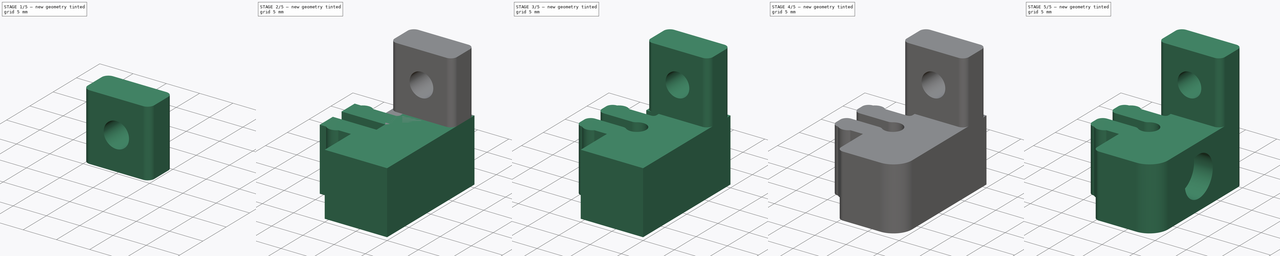
[diagram: build sequence overview — one tinted view per stage of 5, left to right]
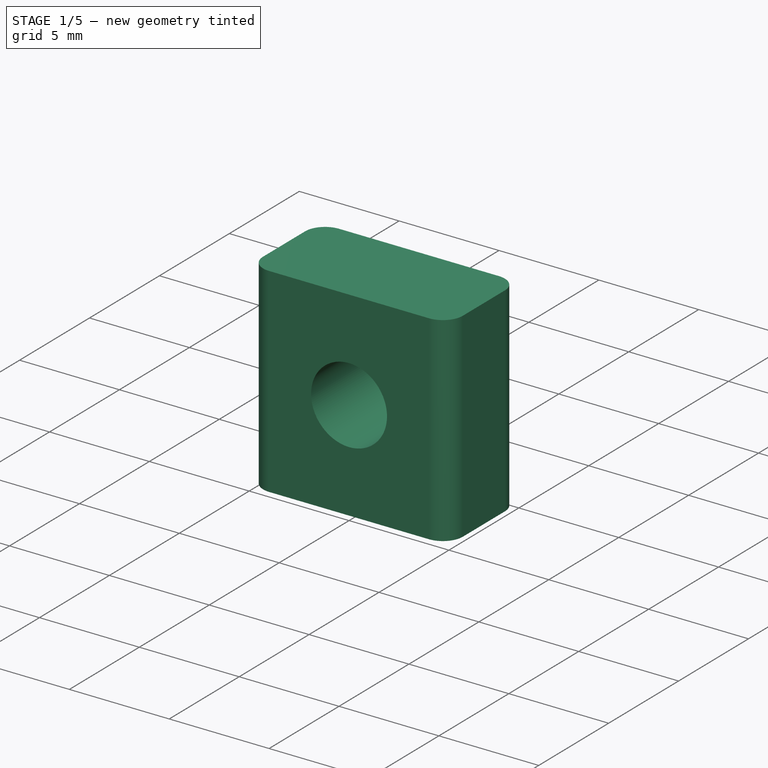
[diagram: stage 1 of 5 — iso view after this stage's code; geometry added in this stage tinted green]
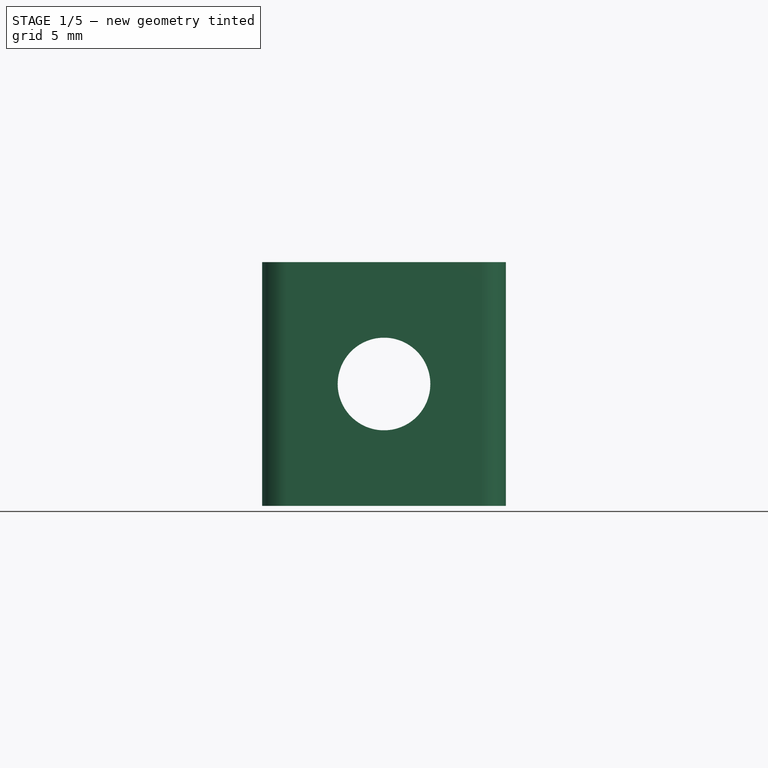
[diagram: stage 1 of 5 — front view after this stage's code; geometry added in this stage tinted green]
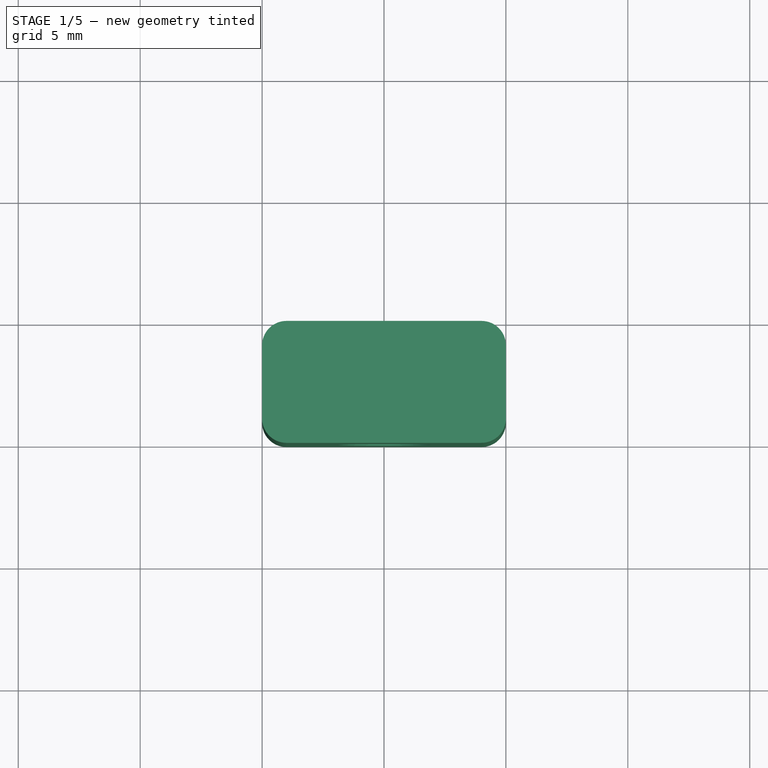
[diagram: stage 1 of 5 — top view after this stage's code; geometry added in this stage tinted green]
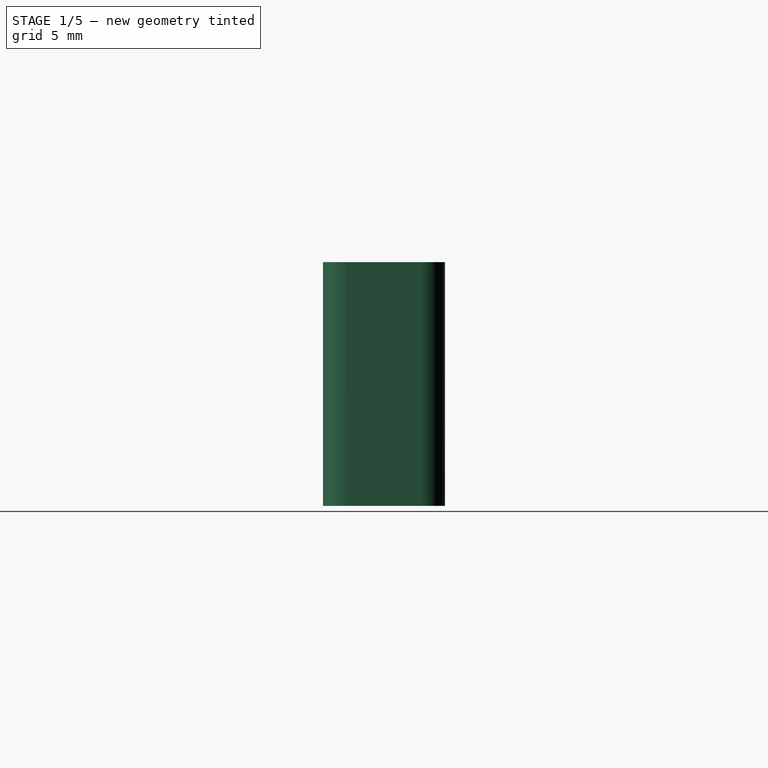
[diagram: stage 1 of 5 — right view after this stage's code; geometry added in this stage tinted green]
FCSTD DOCUMENT  (FreeCAD 0.19R24291 (Git))
Label: bottom-panel-supporter-250
License: Other
LicenseURL: GPL3
objects: Sketcher::SketchObject×6, PartDesign::Fillet×6, PartDesign::Pocket×4, Part::Feature×4, PartDesign::Pad×2, Part::Cylinder×2, PartDesign::Body×1, Part::Box×1, Part::Fillet×1, Part::Cut×1, Part::MultiFuse×1, Part::Refine×1
note: 42 computed .brp shape members not serialized (recipe doc carries the construction recipe); baked Part::Feature solids carry a one-line shape summary decoded from their .brp

FEATURE [PartDesign::Body] Body
  Group = -> [Sketch,Pad,Sketch001,Pocket,Sketch002,Pad001,Fillet,Fillet001,Fillet002,Fillet003,Sketch003,Pocket001,Fillet004,Fillet005,Sketch004,Pocket002,Sketch005,Pocket003]
  Origin = -> Origin
  Tip = -> Pocket003
FEATURE [Part::Feature] Pocket003001
  shape: bbox 15 x 20 x 10 mm, 54 faces (baked)
FEATURE [Part::Box] Box  label="Cube"
  AttacherType = Attacher::AttachEngine3D
  Height = 10
  Length = 10
  Placement = pos=(0,5,10) rot=(0,0,1;0rad)
  Width = 5
FEATURE [Part::Fillet] Fillet006
  Base = -> Box
  Edges = 4 edges r=1: [Edge1,Edge3,Edge5,Edge7]
FEATURE [Part::Cylinder] Cylinder001
  Angle = 360
  AttacherType = Attacher::AttachEngine3D
  Height = 6
  Placement = pos=(5,4,15) rot=(-1,0,0;1.5708rad)
  Radius = 1.9
FEATURE [Part::Cut] Cut
  Base = -> Fillet006
  Tool = -> Cylinder001
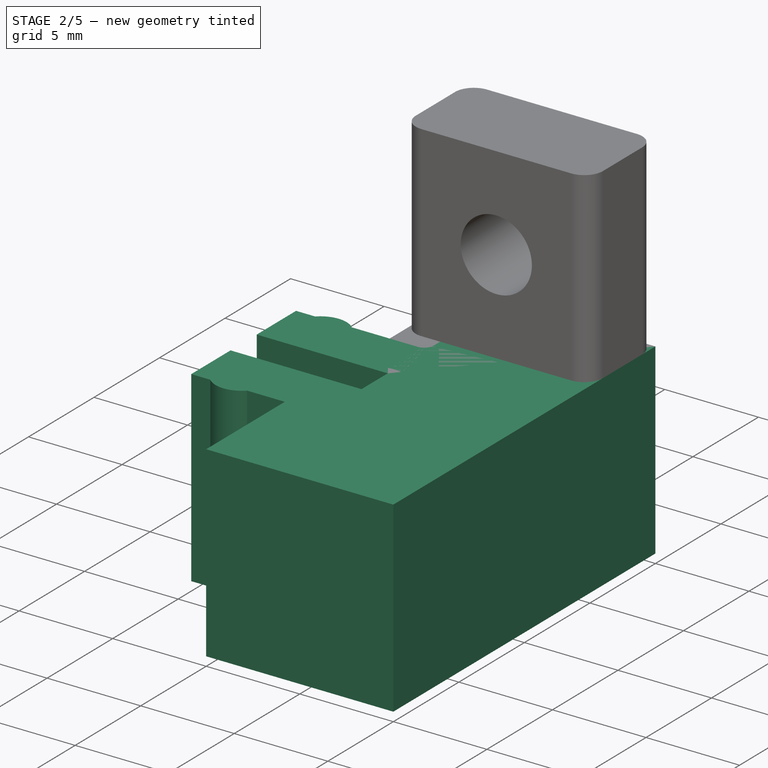
[diagram: stage 2 of 5 — iso view after this stage's code; geometry added in this stage tinted green]
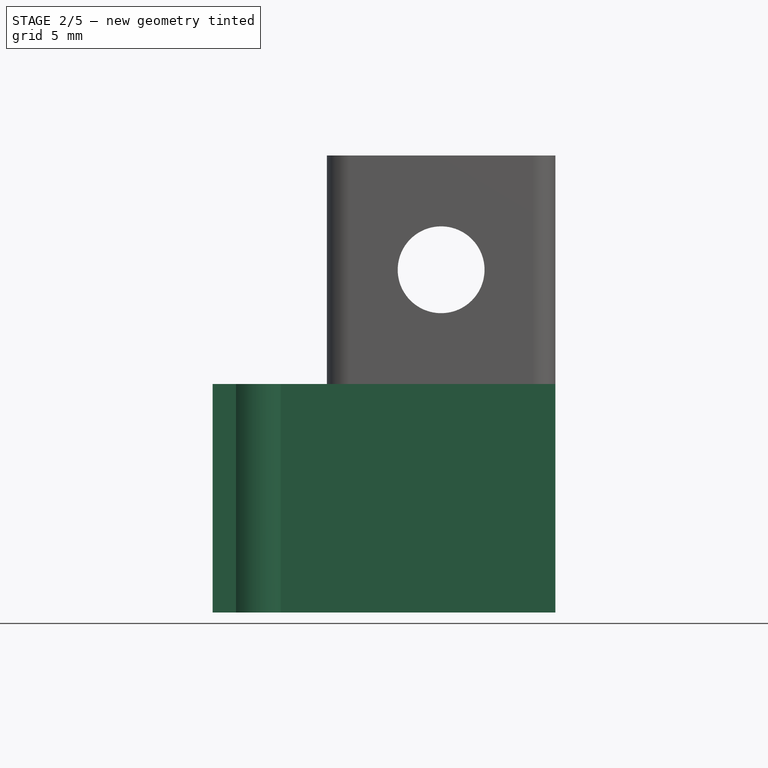
[diagram: stage 2 of 5 — front view after this stage's code; geometry added in this stage tinted green]
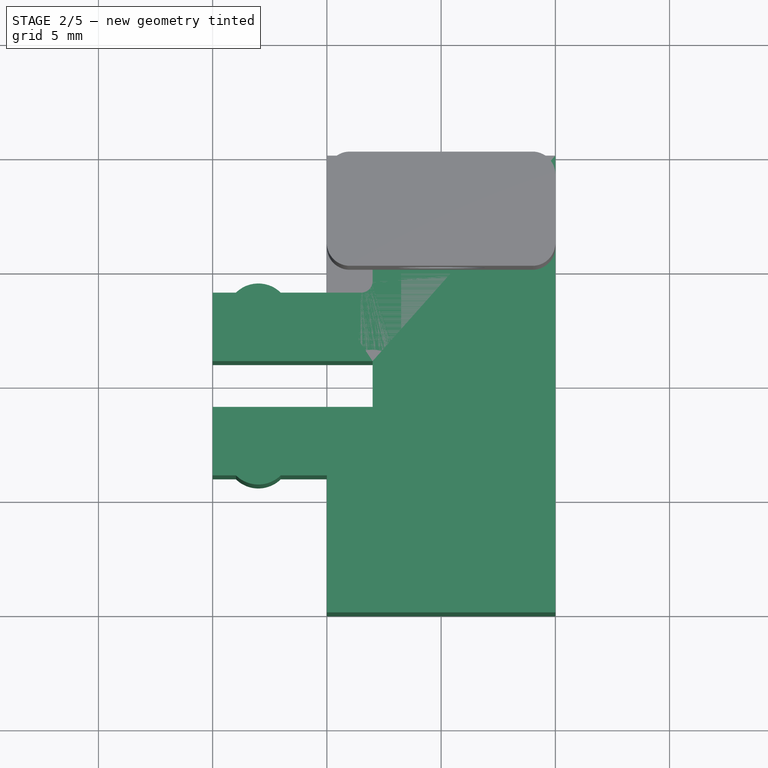
[diagram: stage 2 of 5 — top view after this stage's code; geometry added in this stage tinted green]
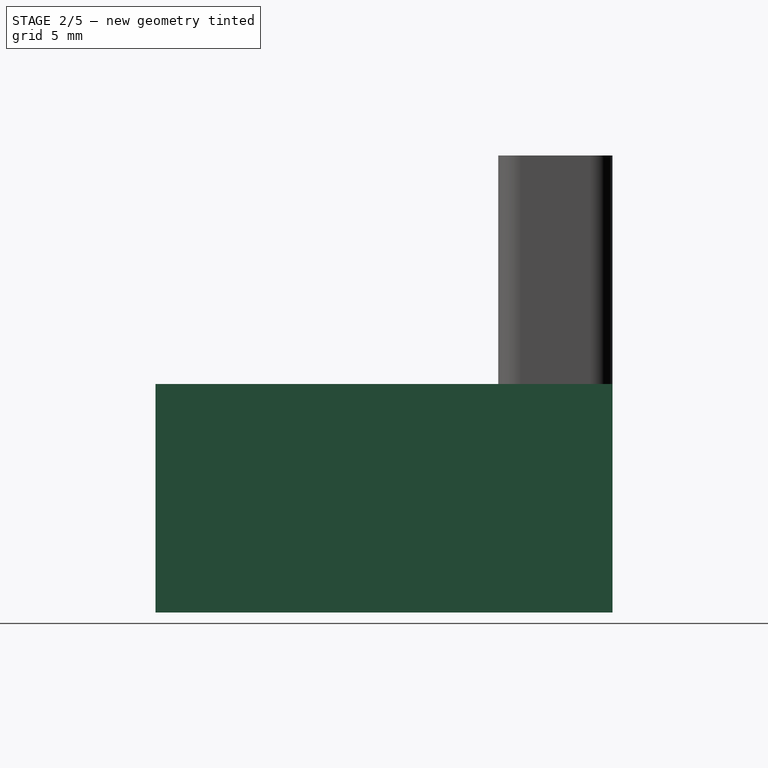
[diagram: stage 2 of 5 — right view after this stage's code; geometry added in this stage tinted green]
FEATURE [Sketcher::SketchObject] Sketch
  FullyConstrained = true
  MapMode = 5
  Support = -> [XY_Plane]
  sketch-geometry (12):
    g0: LineSegment StartX=0 StartY=4 StartZ=0 EndX=-5 EndY=4 EndZ=0
    g1: LineSegment StartX=-5 StartY=-4 StartZ=0 EndX=0 EndY=-4 EndZ=0
    g2: LineSegment StartX=0 StartY=4 StartZ=0 EndX=0 EndY=10 EndZ=0
    g3: LineSegment StartX=0 StartY=10 StartZ=0 EndX=10 EndY=10 EndZ=0
    g4: LineSegment StartX=0 StartY=-4 StartZ=0 EndX=0 EndY=-10 EndZ=0
    g5: LineSegment StartX=0 StartY=-10 StartZ=0 EndX=10 EndY=-10 EndZ=0
    g6: LineSegment StartX=10 StartY=10 StartZ=0 EndX=10 EndY=-10 EndZ=0
    g7: LineSegment StartX=-5 StartY=4 StartZ=0 EndX=-5 EndY=1 EndZ=0
    g8: LineSegment StartX=-5 StartY=-4 StartZ=0 EndX=-5 EndY=-1 EndZ=0
    g9: LineSegment StartX=-5 StartY=1 StartZ=0 EndX=2 EndY=1 EndZ=0
    g10: LineSegment StartX=-5 StartY=-1 StartZ=0 EndX=2 EndY=-1 EndZ=0
    g11: LineSegment StartX=2 StartY=1 StartZ=0 EndX=2 EndY=-1 EndZ=0
  constraints (36):
    c: PointOnObject(g0,g-2)
    c: Horizontal(g0)
    c: PointOnObject(g1,g-2)
    c: Horizontal(g1)
    c: Coincident(g2,g0)
    c: Vertical(g2)
    c: Coincident(g3,g2)
    c: Horizontal(g3)
    c: Coincident(g4,g1)
    c: PointOnObject(g4,g-2)
    c: Coincident(g5,g4)
    c: Horizontal(g5)
    c: Coincident(g6,g3)
    c: Coincident(g6,g5)
    c: Vertical(g6)
    c: Coincident(g7,g0)
    c: Vertical(g7)
    c: Coincident(g8,g1)
    c: Vertical(g8)
    c: Coincident(g9,g7)
    c: Horizontal(g9)
    c: Coincident(g10,g8)
    c: Horizontal(g10)
    c: Coincident(g11,g9)
    c: Vertical(g11)
    c: DistanceX(g3,g3) = 10
    c: DistanceX(g0,g0) = 5
    c: DistanceY(g7,g7) = 3
    c: DistanceY(g8,g8) = 3
    c: DistanceY(g4,g4) = 6
    c: DistanceY(g11,g11) = 2
    c: DistanceY(g6,g6) = 20
    c: DistanceY(g-1,g2) = 10
    c: Coincident(g11,g10)
    c: DistanceX(g1,g1) = 5
    c: DistanceX(g-1,g9) = 2
FEATURE [PartDesign::Pad] Pad
  Direction = (1,1,1)
  Length = 10
  Length2 = 100
  Profile = -> Sketch
  Type = 0
FEATURE [Part::Cylinder] Cylinder
  Angle = 360
  AttacherType = Attacher::AttachEngine3D
  Height = 6
  Placement = pos=(5,4,5) rot=(1,0,0;4.71239rad)
  Radius = 2
FEATURE [Part::MultiFuse] Fusion
  Shapes = -> [Pocket003001,Cylinder,Cut]
FEATURE [Part::Refine] Fusion001
  Source = -> Fusion
FEATURE [Part::Feature] Fusion001001
  shape: bbox 15 x 20 x 20 mm, 44 faces (baked)
FEATURE [Part::Feature] Fusion001002
  Placement = pos=(-14,0,-1.7e-15) rot=(0,1,0;3.14159rad)
  shape: bbox 15 x 20 x 20 mm, 44 faces (baked)
FEATURE [Part::Feature] Part__Mirroring001  label="Fusion001002 (Mirror #1)001"
  shape: bbox 15 x 20 x 20 mm, 44 faces (baked)
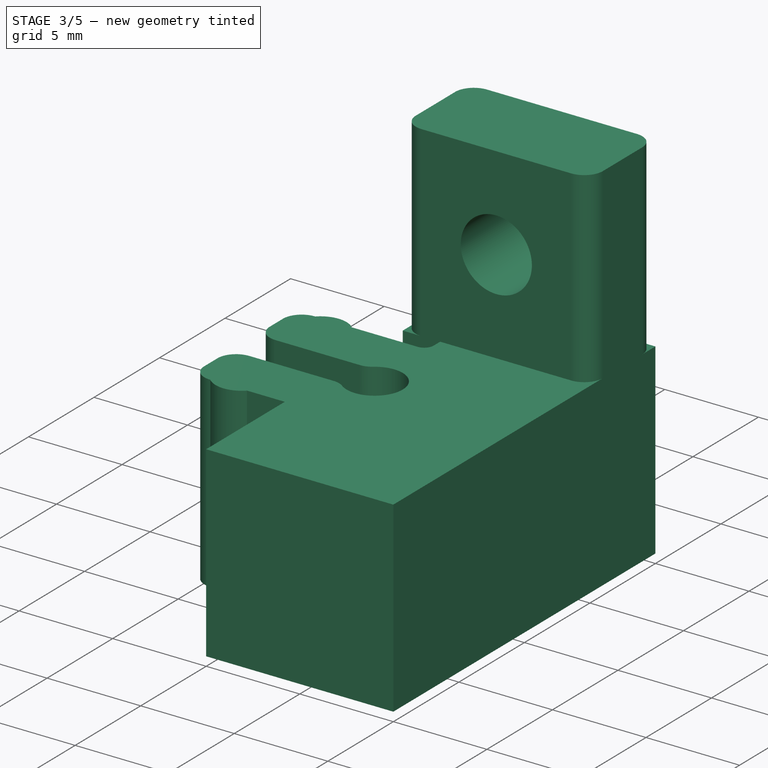
[diagram: stage 3 of 5 — iso view after this stage's code; geometry added in this stage tinted green]
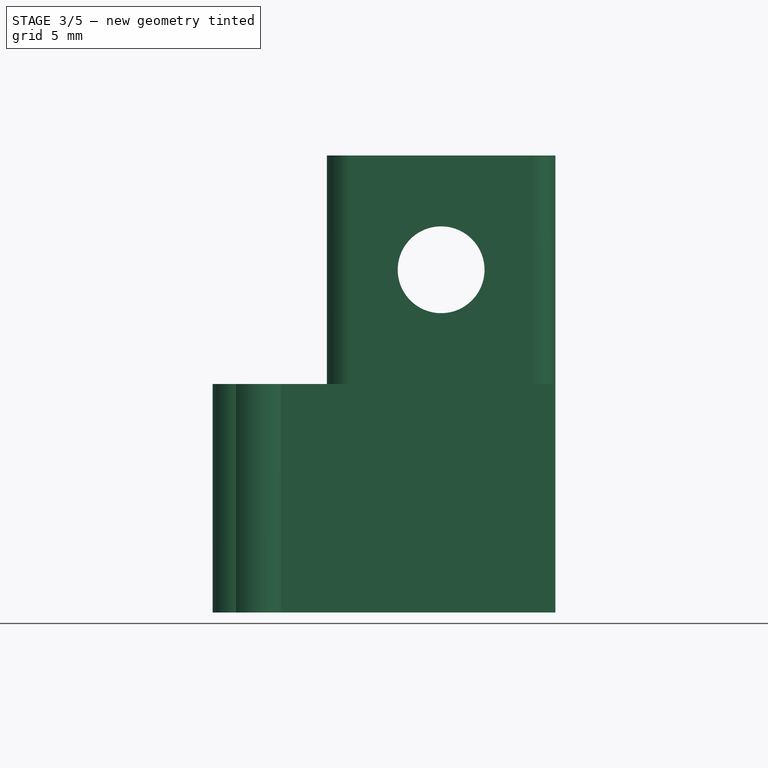
[diagram: stage 3 of 5 — front view after this stage's code; geometry added in this stage tinted green]
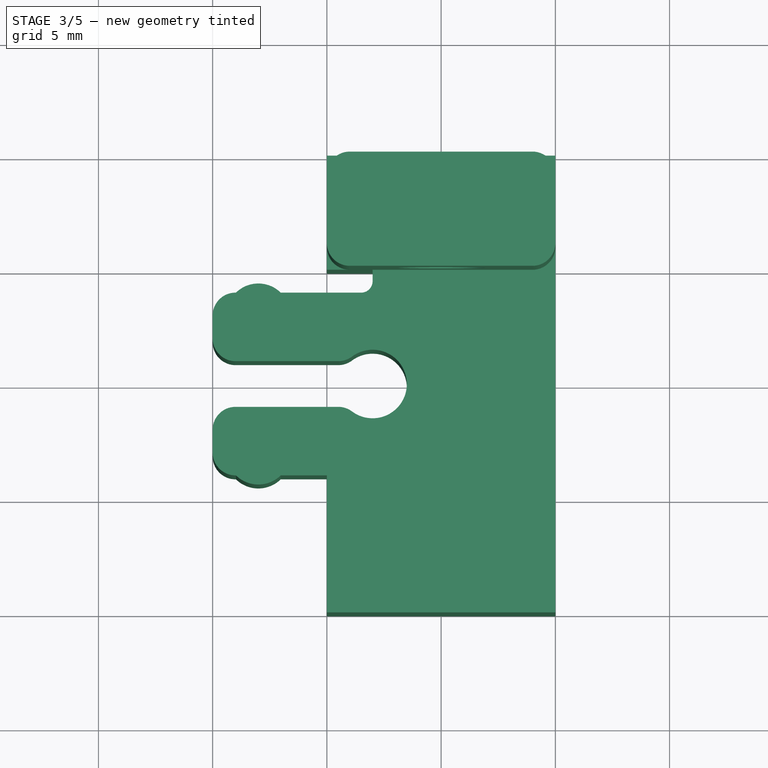
[diagram: stage 3 of 5 — top view after this stage's code; geometry added in this stage tinted green]
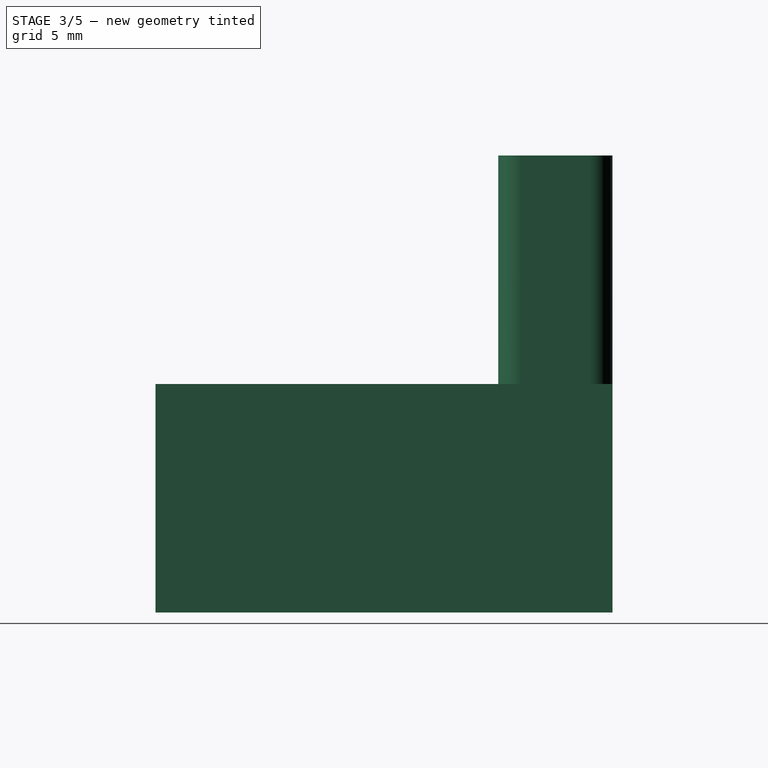
[diagram: stage 3 of 5 — right view after this stage's code; geometry added in this stage tinted green]
FEATURE [Sketcher::SketchObject] Sketch001
  FullyConstrained = true
  MapMode = 5
  Placement = pos=(0,0,10) rot=(0,0,1;0rad)
  Support = -> [Pad]
  sketch-geometry (5):
    g0: Circle CenterX=2 CenterY=0 CenterZ=0 NormalX=0 NormalY=0 NormalZ=1 AngleXU=0 Radius=1.5
    g1: LineSegment StartX=0 StartY=5 StartZ=0 EndX=2 EndY=5 EndZ=0
    g2: LineSegment StartX=2 StartY=5 StartZ=0 EndX=2 EndY=4 EndZ=0
    g3: LineSegment StartX=2 StartY=4 StartZ=0 EndX=0 EndY=4 EndZ=0
    g4: LineSegment StartX=0 StartY=4 StartZ=0 EndX=0 EndY=5 EndZ=0
  constraints (15):
    c: PointOnObject(g0,g-1)
    c: DistanceX(g-1,g0) = 2
    c: Radius(g0) = 1.5
    c: Coincident(g1,g2)
    c: Coincident(g2,g3)
    c: Coincident(g3,g4)
    c: Coincident(g4,g1)
    c: Horizontal(g1)
    c: Horizontal(g3)
    c: Vertical(g2)
    c: Vertical(g4)
    c: PointOnObject(g1,g-2)
    c: DistanceX(g1,g1) = 2
    c: DistanceY(g2,g2) = 1
    c: DistanceY(g-1,g3) = 4
FEATURE [PartDesign::Pocket] Pocket
  BaseFeature = -> Pad
  Length = 5
  Length2 = 100
  Profile = -> Sketch001
  Type = 1
FEATURE [Sketcher::SketchObject] Sketch002
  FullyConstrained = true
  MapMode = 5
  Placement = pos=(0,0,10) rot=(0,0,1;0rad)
  Support = -> [Pocket]
  sketch-geometry (2):
    g0: Circle CenterX=-3 CenterY=3 CenterZ=0 NormalX=0 NormalY=0 NormalZ=1 AngleXU=0 Radius=1.4
    g1: Circle CenterX=-3 CenterY=-3 CenterZ=0 NormalX=0 NormalY=0 NormalZ=1 AngleXU=0 Radius=1.4
  constraints (6):
    c: DistanceY(g-1,g0) = 3
    c: DistanceX(g0,g-1) = 3
    c: Radius(g0) = 1.4
    c: DistanceX(g1,g-1) = 3
    c: DistanceY(g1,g-1) = 3
    c: Radius(g1) = 1.4
FEATURE [PartDesign::Pad] Pad001
  BaseFeature = -> Pocket
  Direction = (1,1,1)
  Length = 10
  Length2 = 100
  Profile = -> Sketch002
  Reversed = true
  Type = 0
FEATURE [PartDesign::Fillet] Fillet
  Base = -> Pad001 [Edge62,Edge61,Edge57,Edge56]
  BaseFeature = -> Pad001
  Radius = 1
  SupportTransform = false
FEATURE [PartDesign::Fillet] Fillet001
  Base = -> Fillet [Edge49,Edge40]
  BaseFeature = -> Fillet
  Radius = 1
  SupportTransform = false
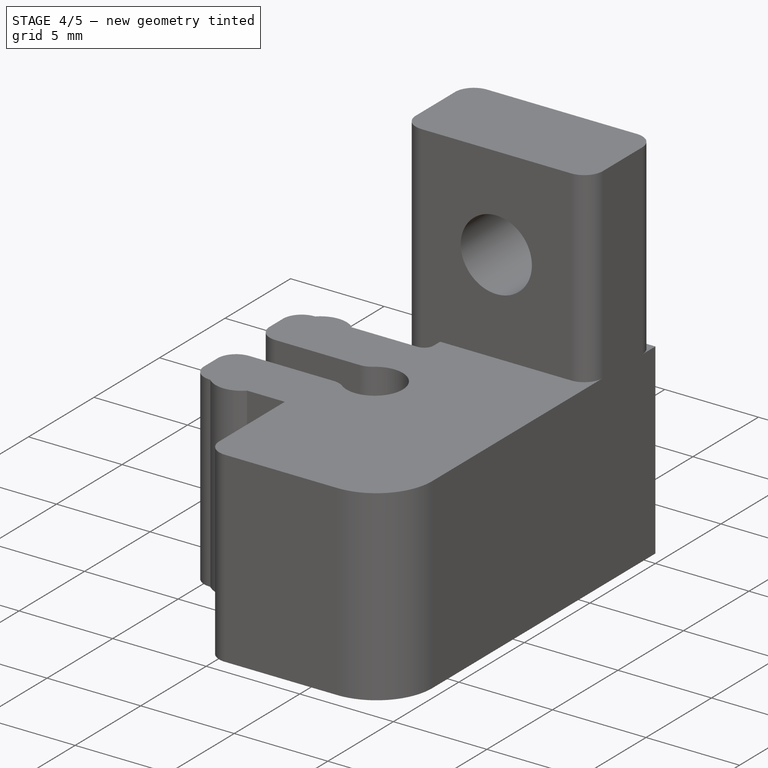
[diagram: stage 4 of 5 — iso view after this stage's code; geometry added in this stage tinted green]
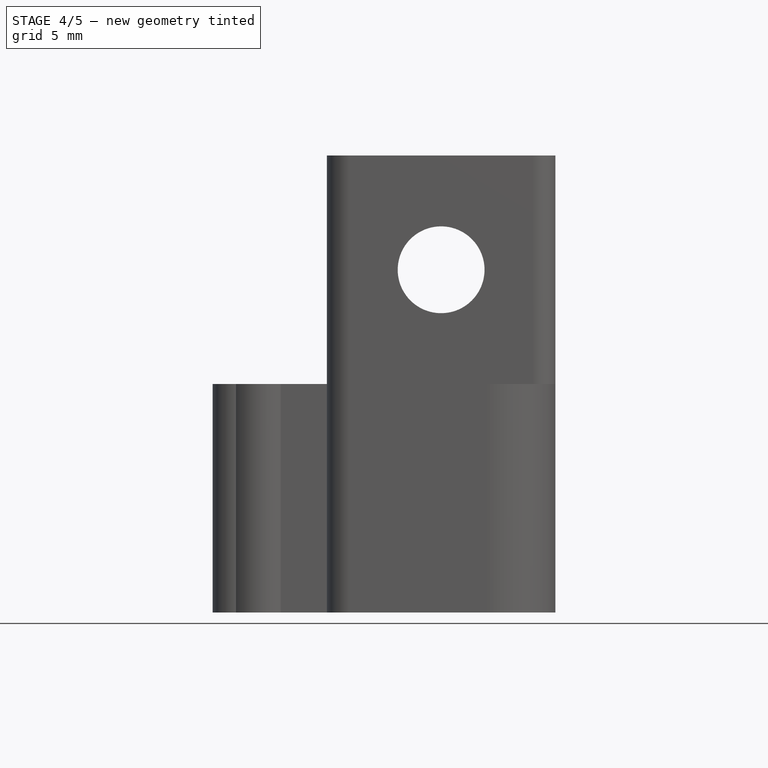
[diagram: stage 4 of 5 — front view after this stage's code; geometry added in this stage tinted green]
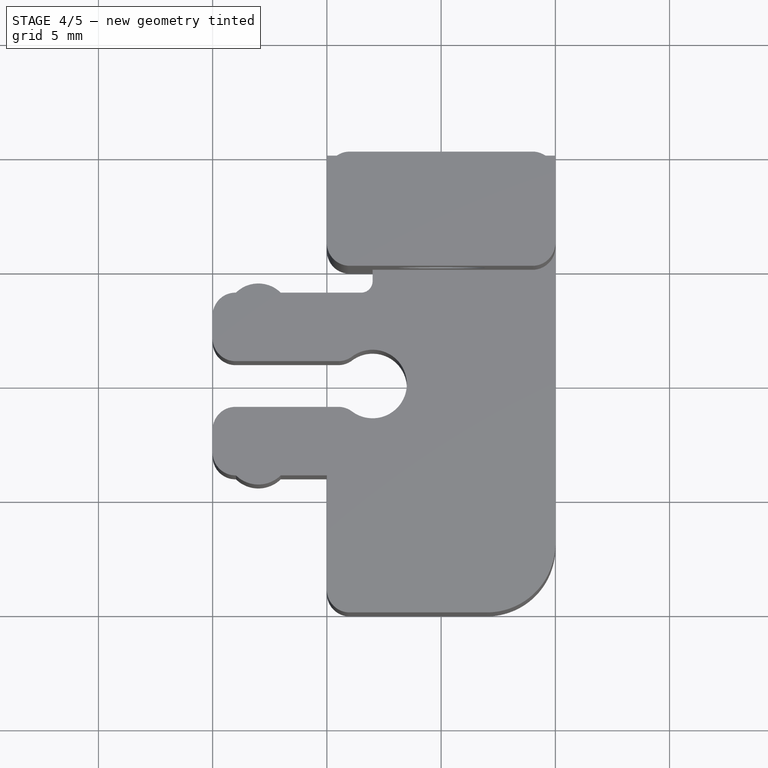
[diagram: stage 4 of 5 — top view after this stage's code; geometry added in this stage tinted green]
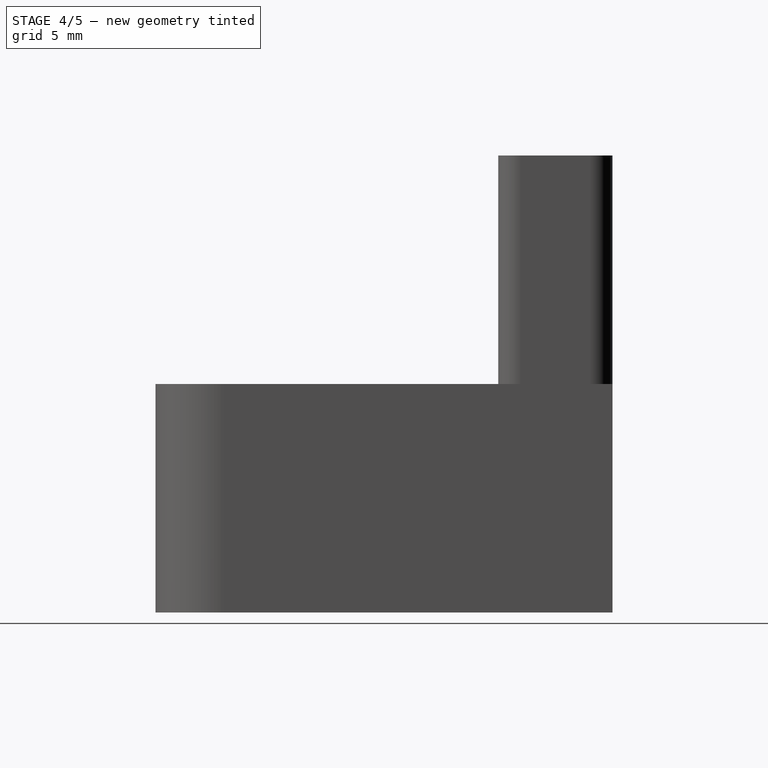
[diagram: stage 4 of 5 — right view after this stage's code; geometry added in this stage tinted green]
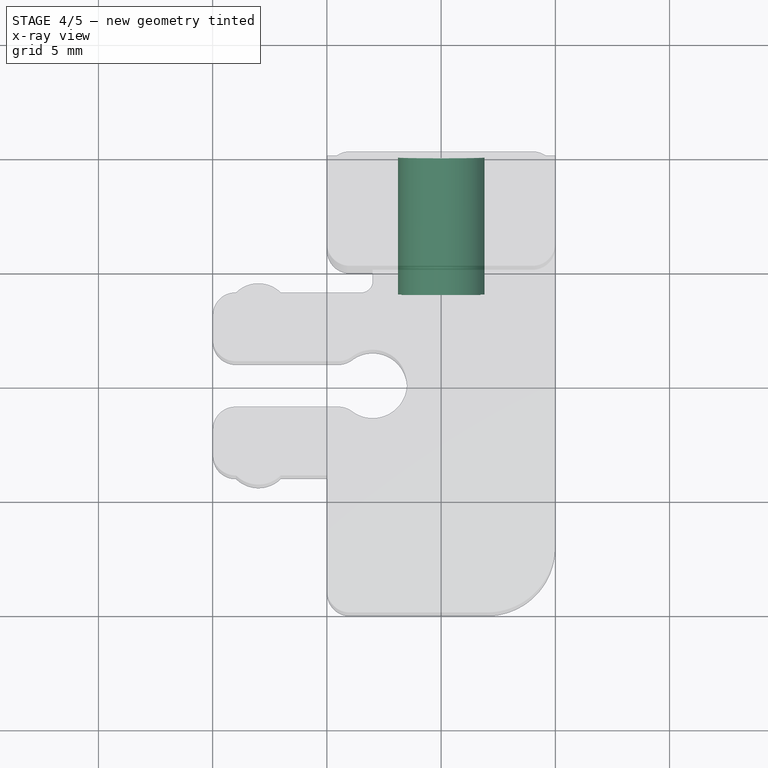
[diagram: stage 4 of 5 — x-ray composite at the top view; earlier geometry ghosted, this stage's added geometry solid]
FEATURE [PartDesign::Fillet] Fillet002
  Base = -> Fillet001 [Edge75,Edge60]
  BaseFeature = -> Fillet001
  Radius = 1
  SupportTransform = false
FEATURE [PartDesign::Fillet] Fillet003
  Base = -> Fillet002 [Edge38]
  BaseFeature = -> Fillet002
  Radius = 3
  SupportTransform = false
FEATURE [Sketcher::SketchObject] Sketch003
  FullyConstrained = true
  MapMode = 5
  Placement = pos=(0,10,0) rot=(0,0.707107,0.707107;3.14159rad)
  Support = -> [Fillet003]
  sketch-geometry (1):
    g0: Circle CenterX=-5 CenterY=5 CenterZ=0 NormalX=0 NormalY=0 NormalZ=1 AngleXU=0 Radius=1.9
  constraints (3):
    c: DistanceX(g0,g-1) = 5
    c: DistanceY(g-1,g0) = 5
    c: Radius(g0) = 1.9
FEATURE [PartDesign::Pocket] Pocket001
  BaseFeature = -> Fillet003
  Length = 6
  Length2 = 100
  Profile = -> Sketch003
  Type = 0
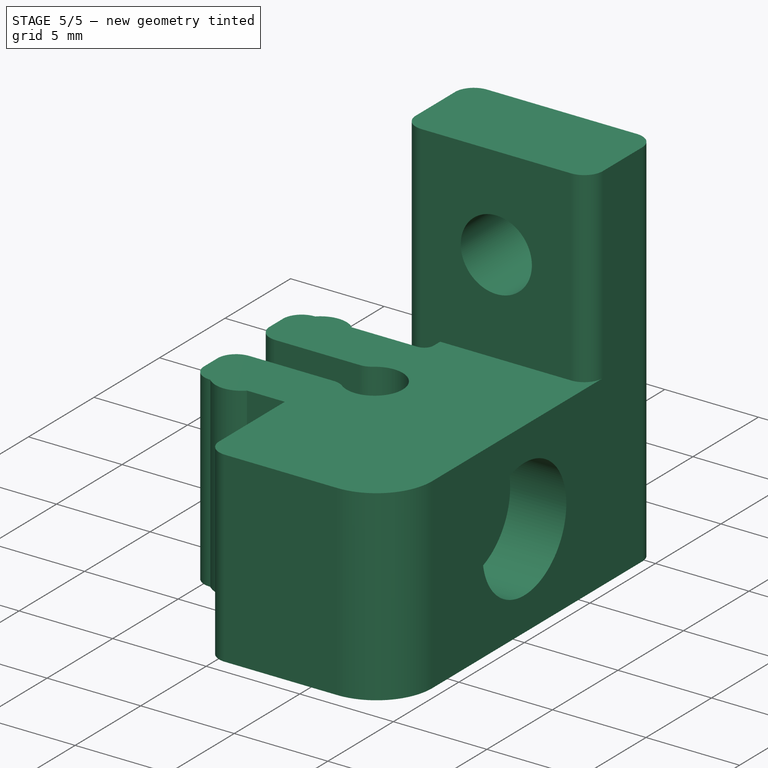
[diagram: stage 5 of 5 — iso view after this stage's code; geometry added in this stage tinted green]
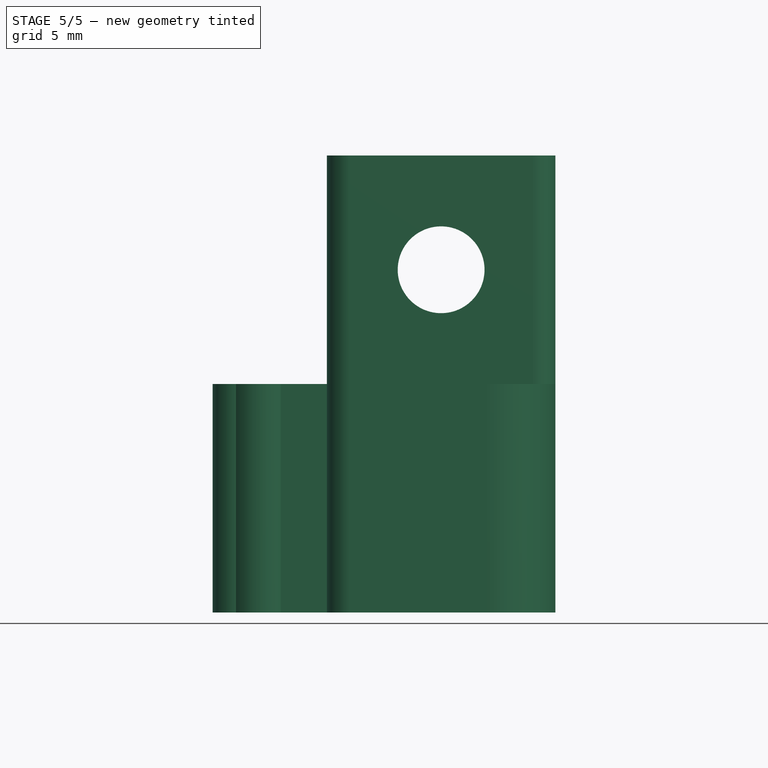
[diagram: stage 5 of 5 — front view after this stage's code; geometry added in this stage tinted green]
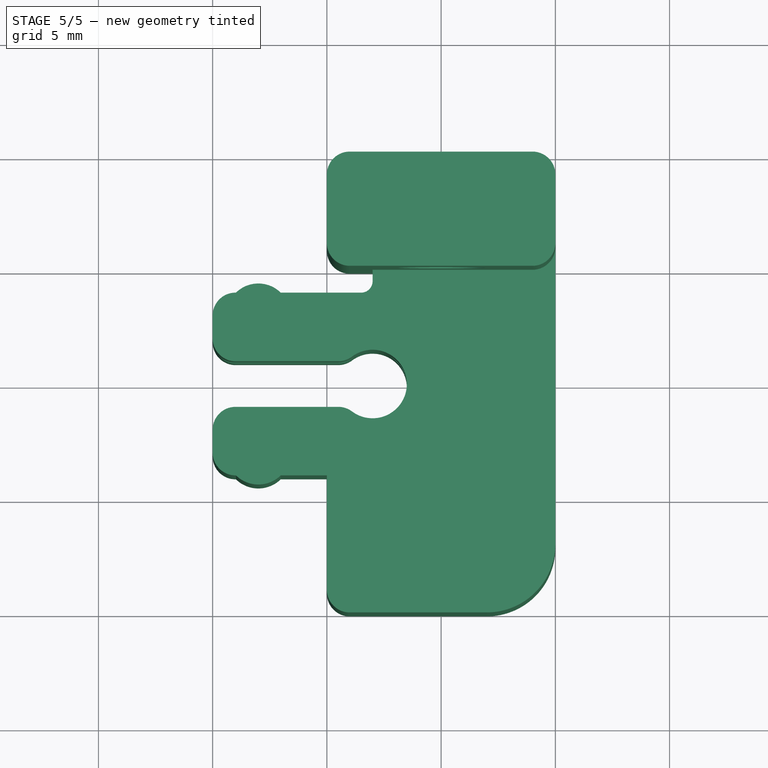
[diagram: stage 5 of 5 — top view after this stage's code; geometry added in this stage tinted green]
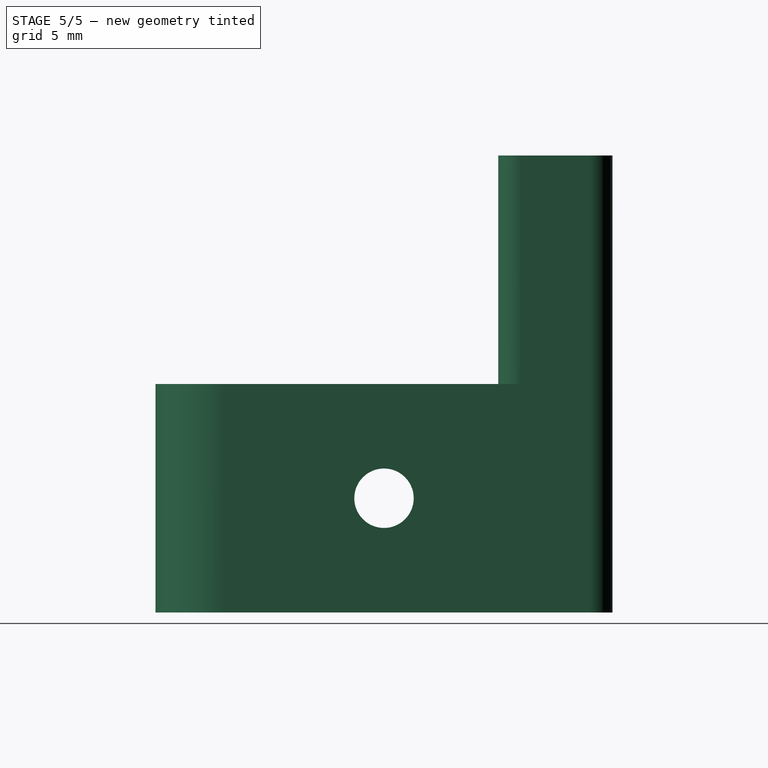
[diagram: stage 5 of 5 — right view after this stage's code; geometry added in this stage tinted green]
FEATURE [PartDesign::Fillet] Fillet004
  Base = -> Pocket001 [Edge59]
  BaseFeature = -> Pocket001
  Radius = 0.5
  SupportTransform = false
FEATURE [PartDesign::Fillet] Fillet005
  Base = -> Fillet004 [Edge46,Edge50]
  BaseFeature = -> Fillet004
  Radius = 1
  SupportTransform = false
FEATURE [Sketcher::SketchObject] Sketch004
  FullyConstrained = true
  MapMode = 5
  Placement = pos=(10,0,0) rot=(0.57735,0.57735,0.57735;2.0944rad)
  Support = -> [Fillet005]
  sketch-geometry (1):
    g0: Circle CenterX=0 CenterY=5 CenterZ=0 NormalX=0 NormalY=0 NormalZ=1 AngleXU=0 Radius=3.2
  constraints (3):
    c: DistanceY(g-1,g0) = 5
    c: DistanceX(g0,g-1) = 0
    c: Radius(g0) = 3.2
FEATURE [PartDesign::Pocket] Pocket002
  BaseFeature = -> Fillet005
  Length = 3
  Length2 = 100
  Profile = -> Sketch004
  Type = 0
FEATURE [Sketcher::SketchObject] Sketch005
  FullyConstrained = true
  MapMode = 5
  Placement = pos=(10,0,0) rot=(0.57735,0.57735,0.57735;2.0944rad)
  Support = -> [Pocket002]
  sketch-geometry (1):
    g0: Circle CenterX=0 CenterY=5 CenterZ=0 NormalX=0 NormalY=0 NormalZ=1 AngleXU=0 Radius=1.3
  constraints (3):
    c: DistanceY(g-1,g0) = 5
    c: DistanceX(g0,g-1) = 0
    c: Radius(g0) = 1.3
FEATURE [PartDesign::Pocket] Pocket003
  BaseFeature = -> Pocket002
  Length = 5
  Length2 = 100
  Profile = -> Sketch005
  Type = 1
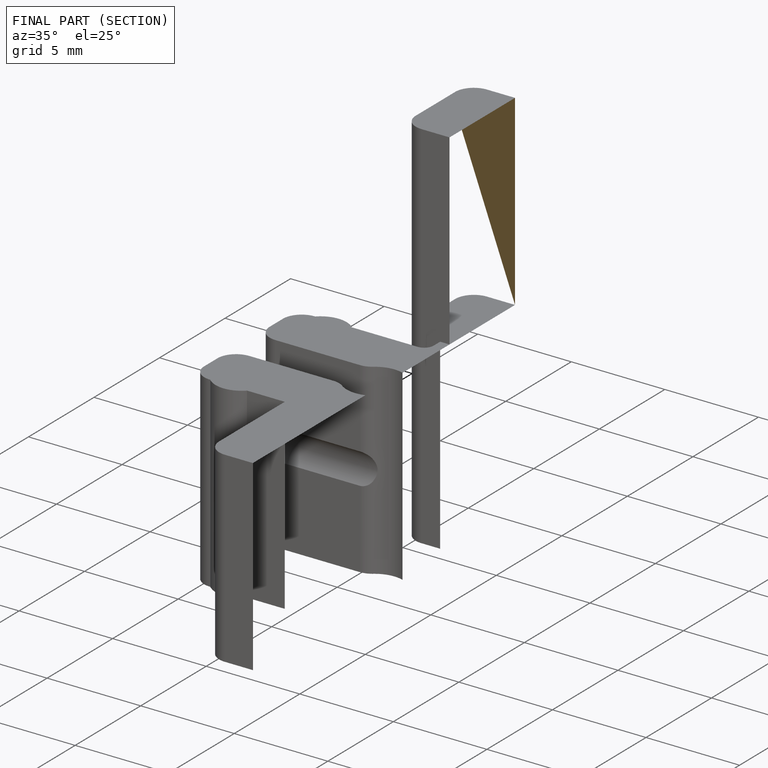
[diagram: finished part — half-section view (interior)]
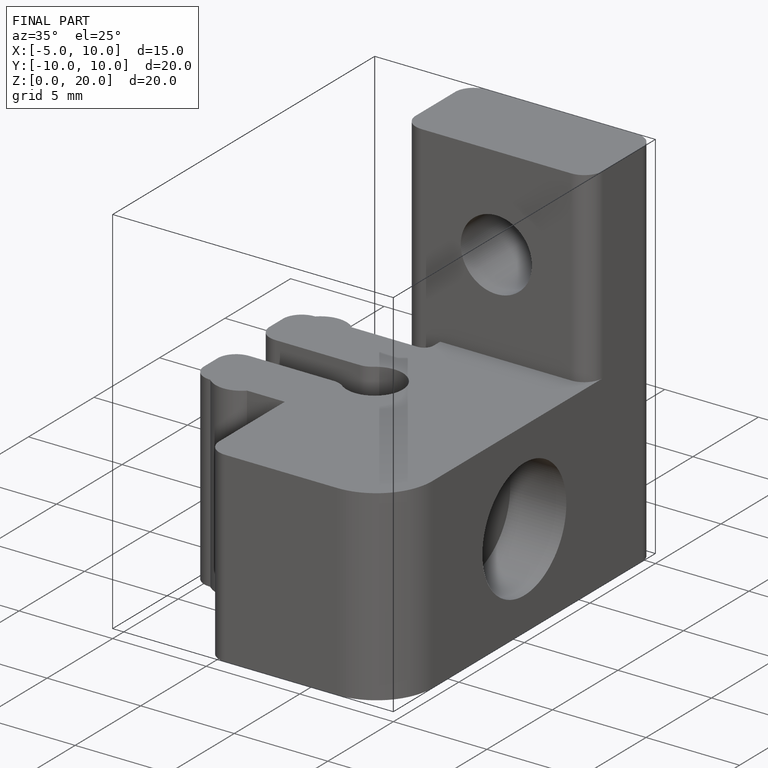
[diagram: finished part — iso view with bounding-box wireframe]
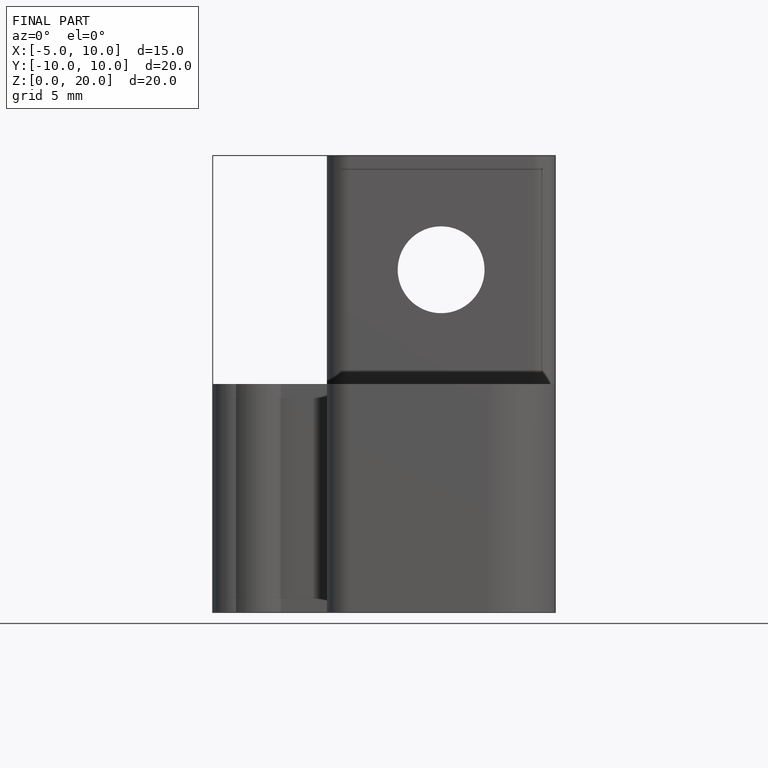
[diagram: finished part — front view with bounding-box wireframe]
